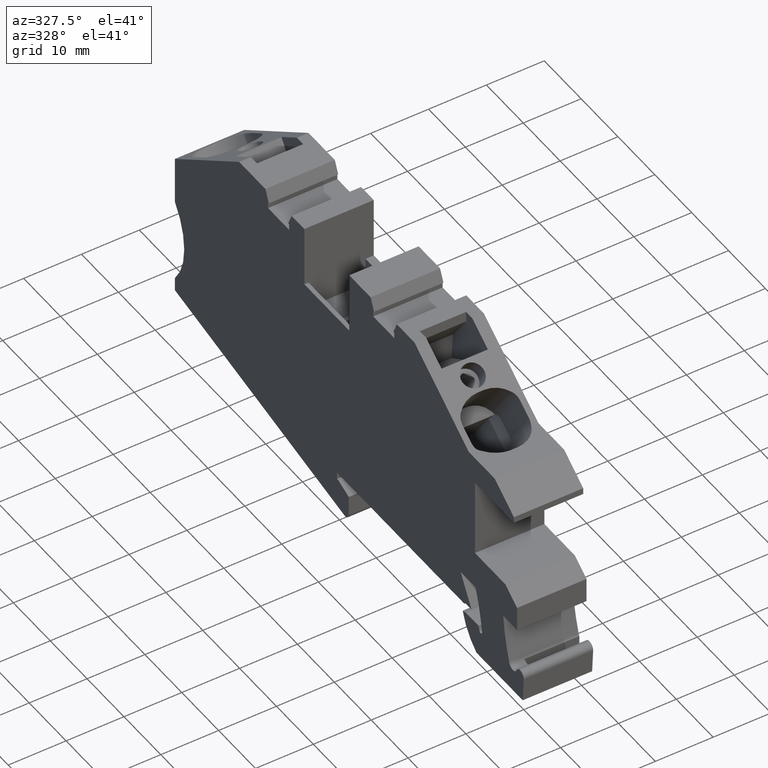
[diagram: clean part render]
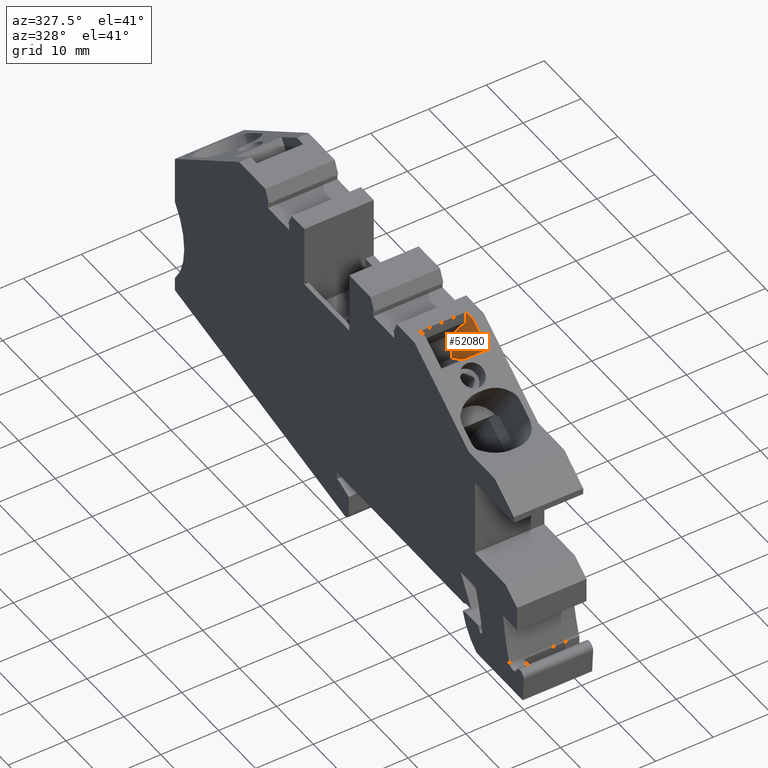
[diagram: same view with one face highlighted and labeled with its STEP entity id]
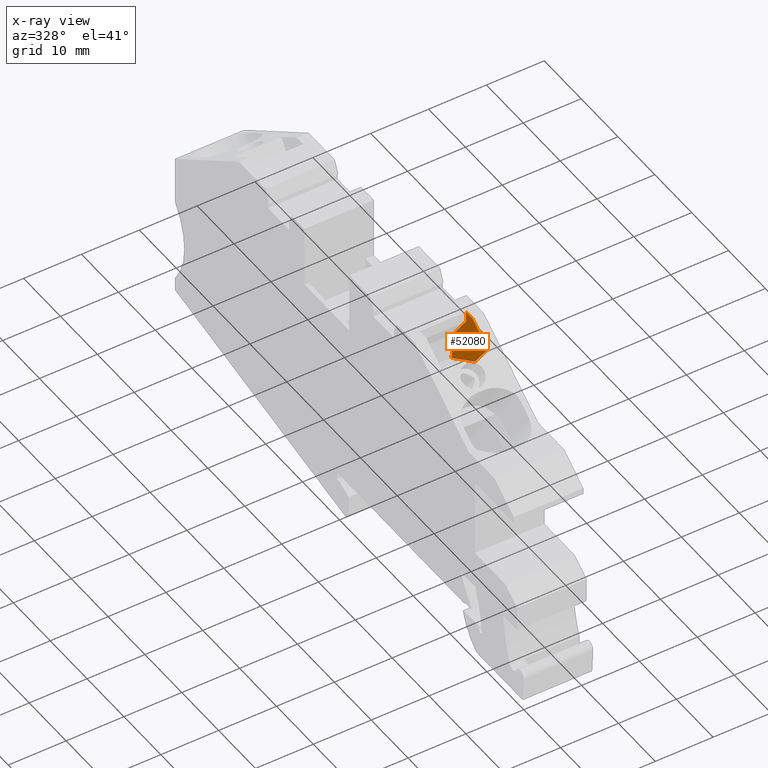
[diagram: x-ray of the same camera — body ghosted, the highlighted face saturated]
A machine part, auxiliary view. The second image highlights one B-rep face of the part: STEP entity #52080.
The next image is the same camera in x-ray: the body ghosted, the highlighted face saturated — about 0% of this face is hidden behind the body in this view.
In plain terms, the highlighted planar face has unit normal (-1, -0, -0).
Its self-contained STEP definition (entity closure, byte-faithful):
#50170=CARTESIAN_POINT('',(28.0144022095361,40.3860395273262,50.7));
#50180=VERTEX_POINT('',#50170);
#50210=CARTESIAN_POINT('',(59.0472152839663,40.3929597599458,50.7));
#50220=DIRECTION('',(-0.99999997513611,-0.000222997265215238,
1.17524177343018E-16));
#50230=VECTOR('',#50220,1.);
#50240=LINE('',#50210,#50230);
#50250=CARTESIAN_POINT('',(29.7052326016177,40.386416577889,50.7));
#50260=VERTEX_POINT('',#50250);
#50270=EDGE_CURVE('',#50260,#50180,#50240,.T.);
#51340=CARTESIAN_POINT('',(23.8154160570434,37.4458778225775,50.7));
#51350=VERTEX_POINT('',#51340);
#51430=CARTESIAN_POINT('',(27.273486552827,32.5072412493964,50.7));
#51440=VERTEX_POINT('',#51430);
#51470=CARTESIAN_POINT('',(23.8154160570434,37.4458778225775,50.7));
#51480=DIRECTION('',(-0.573576429535614,0.819152049061209,
1.50084054480385E-16));
#51490=VECTOR('',#51480,1.);
#51500=LINE('',#51470,#51490);
#51510=EDGE_CURVE('',#51440,#51350,#51500,.T.);
#51630=CARTESIAN_POINT('',(22.5515615018391,40.8862505759133,50.7));
#51640=DIRECTION('',(-8.51383852896804E-18,2.77555766192841E-17,-1.));
#51650=DIRECTION('',(-1.,8.35389248055041E-9,8.51383876083514E-18));
#51660=AXIS2_PLACEMENT_3D('',#51630,#51640,#51650);
#51670=PLANE('',#51660);
#51680=ORIENTED_EDGE('',*,*,#50270,.F.);
#51690=CARTESIAN_POINT('',(59.0472154654337,62.1154489161724,50.7));
#51700=DIRECTION('',(-0.819152049061209,-0.573576429535614,
-8.94581626061071E-18));
#51710=VECTOR('',#51700,1.);
#51720=LINE('',#51690,#51710);
#51730=EDGE_CURVE('',#50180,#51350,#51720,.T.);
#51740=ORIENTED_EDGE('',*,*,#51730,.F.);
#51750=ORIENTED_EDGE('',*,*,#51510,.T.);
#51760=CARTESIAN_POINT('',(21.6620915346123,35.9381037864592,50.7));
#51770=DIRECTION('',(-0.853168384873308,0.521635607539085,
1.51693956392326E-16));
#51780=VECTOR('',#51770,1.);
#51790=LINE('',#51760,#51780);
#51800=CARTESIAN_POINT('',(33.6583635749513,28.6034641480066,50.7));
#51810=VERTEX_POINT('',#51800);
#51820=EDGE_CURVE('',#51810,#51440,#51790,.T.);
#51830=ORIENTED_EDGE('',*,*,#51820,.T.);
#51840=CARTESIAN_POINT('',(33.2374188778694,33.4916481852492,50.7));
#51850=DIRECTION('',(0.0857972023000429,-0.996312621659229,
-1.10620549253508E-16));
#51860=VECTOR('',#51850,1.);
#51870=LINE('',#51840,#51860);
#51880=CARTESIAN_POINT('',(33.2374188778694,33.4916481852492,50.7));
#51890=VERTEX_POINT('',#51880);
#51900=EDGE_CURVE('',#51890,#51810,#51870,.T.);
#51910=ORIENTED_EDGE('',*,*,#51900,.T.);
#51920=CARTESIAN_POINT('',(28.2797947244345,40.5718693635518,50.7));
#51930=DIRECTION('',(0.573576429534501,-0.819152049061988,
-1.50084054480358E-16));
#51940=VECTOR('',#51930,1.);
#51950=LINE('',#51920,#51940);
#51960=CARTESIAN_POINT('',(29.7052325861607,38.536133086538,50.7));
#51970=VERTEX_POINT('',#51960);
#51980=EDGE_CURVE('',#51970,#51890,#51950,.T.);
#51990=ORIENTED_EDGE('',*,*,#51980,.T.);
#52000=CARTESIAN_POINT('',(29.7052324791989,25.7323050161524,50.7));
#52010=DIRECTION('',(-8.35389253606156E-9,-1.,-1.00906856905554E-16));
#52020=VECTOR('',#52010,1.);
#52030=LINE('',#52000,#52020);
#52040=EDGE_CURVE('',#50260,#51970,#52030,.T.);
#52050=ORIENTED_EDGE('',*,*,#52040,.T.);
#52060=EDGE_LOOP('',(#52050,#51990,#51910,#51830,#51750,#51740,#51680));
#52070=FACE_OUTER_BOUND('',#52060,.T.);
#52080=ADVANCED_FACE('',(#52070),#51670,.T.);